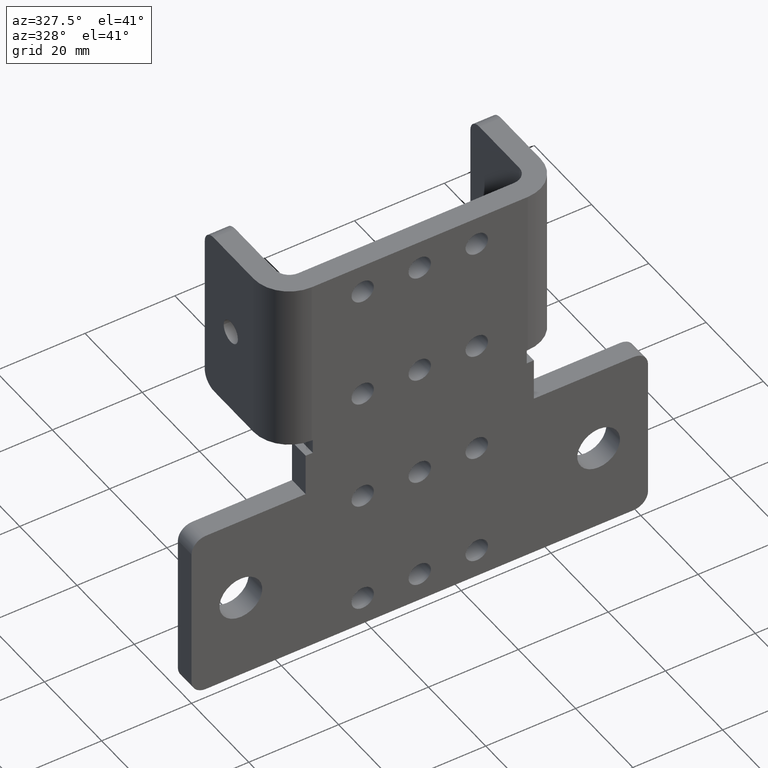
[diagram: clean part render]
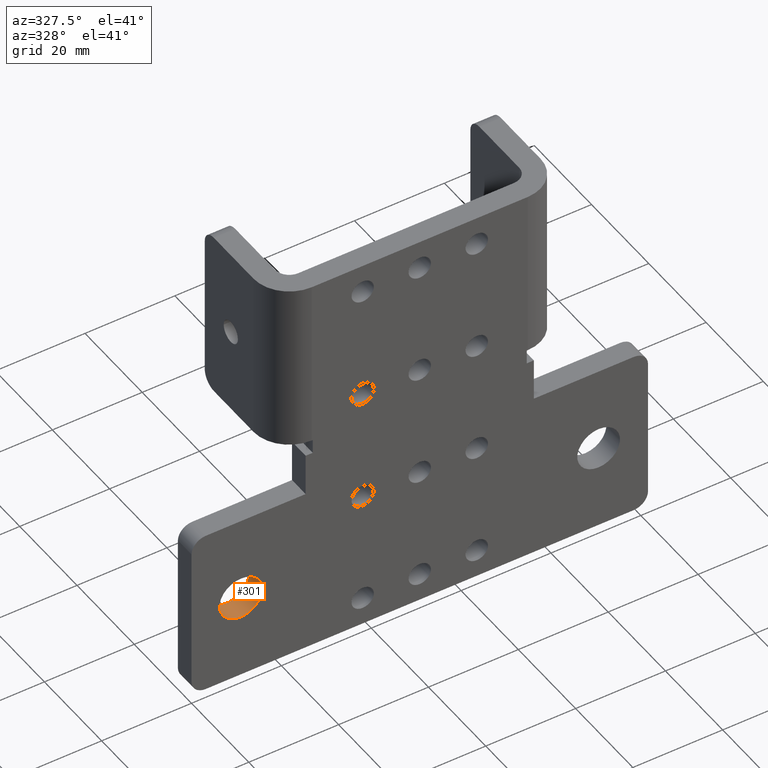
[diagram: same view with one face highlighted and labeled with its STEP entity id]
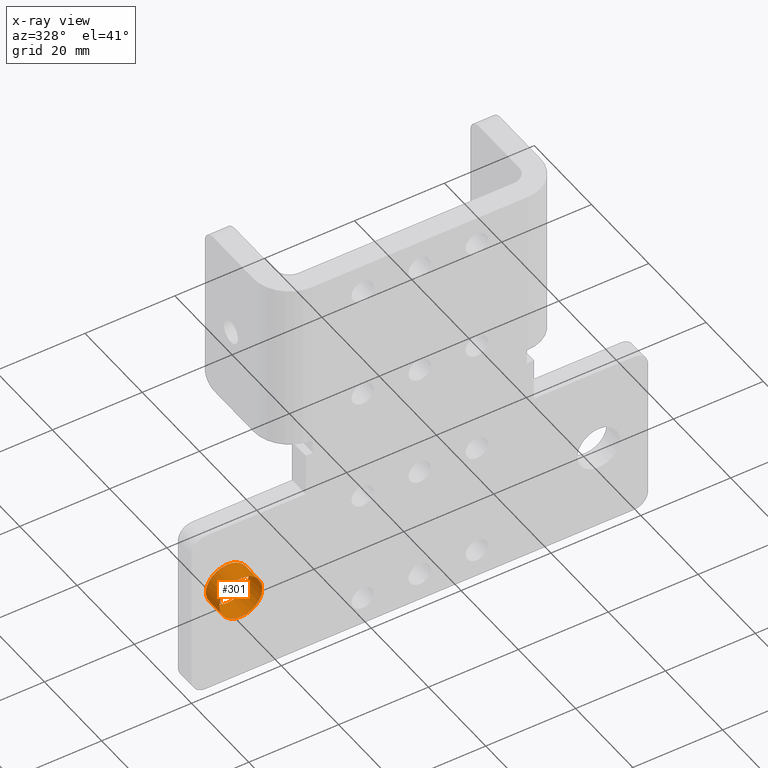
[diagram: x-ray of the same camera — body ghosted, the highlighted face saturated]
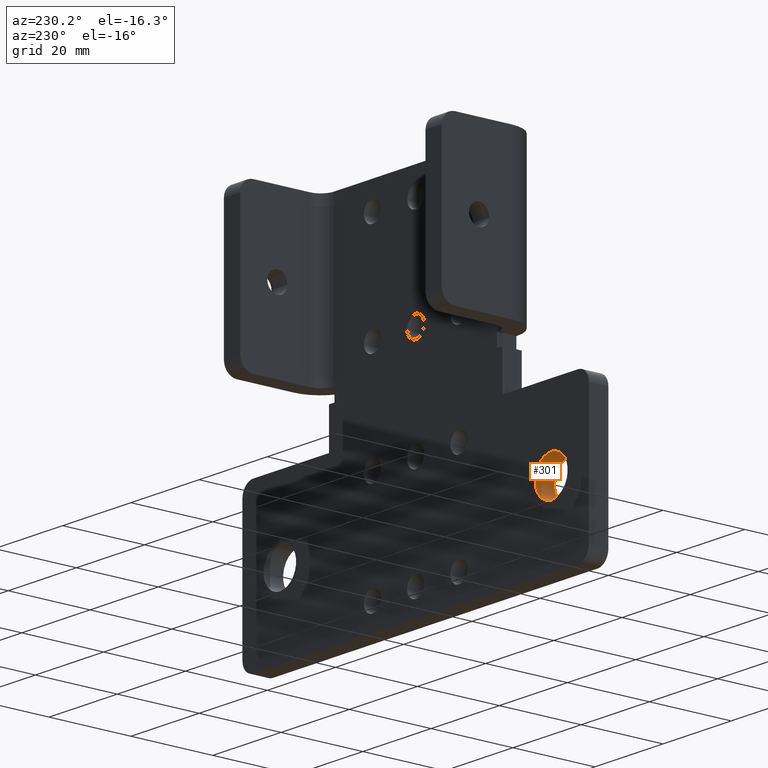
[diagram: same view with one face highlighted and labeled with its STEP entity id]
A machine part, auxiliary view. The second image highlights one B-rep face of the part: STEP entity #301.
The next image is the same camera in x-ray: the body ghosted, the highlighted face saturated — about 0% of this face is hidden behind the body in this view.
A second angle (auxiliary view) of the same face is appended — the face is thin or edge-on in the first view.
In plain terms, the highlighted cylindrical surface (bore or boss wall) has radius 4.7625 mm, axis along (0, 1, -0).
Its self-contained STEP definition (entity closure, byte-faithful):
#57 = CARTESIAN_POINT ( 'NONE',  ( 0.4325000000000001066, 0.0000000000000000000, -0.5625000000000001110 ) ) ;
#203 = DIRECTION ( 'NONE',  ( 0.0000000000000000000, 0.0000000000000000000, 1.000000000000000000 ) ) ;
#211 = ORIENTED_EDGE ( 'NONE', *, *, #579, .T. ) ;
#275 = CIRCLE ( 'NONE', #857, 0.1874999999999999722 ) ;
#276 = AXIS2_PLACEMENT_3D ( 'NONE', #694, #1109, #1371 ) ;
#289 = CARTESIAN_POINT ( 'NONE',  ( 0.4325000000000001066, 0.1875000000000000278, -0.5625000000000001110 ) ) ;
#301 = ADVANCED_FACE ( 'NONE', ( #1807, #1170 ), #508, .F. ) ;
#508 = CYLINDRICAL_SURFACE ( 'NONE', #1262, 0.1874999999999999722 ) ;
#579 = EDGE_CURVE ( 'NONE', #1774, #1774, #623, .T. ) ;
#623 = CIRCLE ( 'NONE', #276, 0.1874999999999999722 ) ;
#629 = DIRECTION ( 'NONE',  ( 0.0000000000000000000, 0.0000000000000000000, 1.000000000000000000 ) ) ;
#694 = CARTESIAN_POINT ( 'NONE',  ( 0.4325000000000001066, 0.1875000000000000278, -0.7500000000000001110 ) ) ;
#857 = AXIS2_PLACEMENT_3D ( 'NONE', #897, #930, #203 ) ;
#877 = ORIENTED_EDGE ( 'NONE', *, *, #1805, .F. ) ;
#897 = CARTESIAN_POINT ( 'NONE',  ( 0.4325000000000001066, 0.0000000000000000000, -0.7500000000000001110 ) ) ;
#930 = DIRECTION ( 'NONE',  ( 0.0000000000000000000, 1.000000000000000000, -0.0000000000000000000 ) ) ;
#951 = DIRECTION ( 'NONE',  ( 0.0000000000000000000, 1.000000000000000000, -0.0000000000000000000 ) ) ;
#1109 = DIRECTION ( 'NONE',  ( 0.0000000000000000000, 1.000000000000000000, -0.0000000000000000000 ) ) ;
#1164 = CARTESIAN_POINT ( 'NONE',  ( 0.4325000000000001066, 0.0000000000000000000, -0.7500000000000001110 ) ) ;
#1167 = EDGE_LOOP ( 'NONE', ( #877 ) ) ;
#1170 = FACE_OUTER_BOUND ( 'NONE', #1648, .T. ) ;
#1262 = AXIS2_PLACEMENT_3D ( 'NONE', #1164, #951, #629 ) ;
#1371 = DIRECTION ( 'NONE',  ( 0.0000000000000000000, 0.0000000000000000000, 1.000000000000000000 ) ) ;
#1648 = EDGE_LOOP ( 'NONE', ( #211 ) ) ;
#1754 = VERTEX_POINT ( 'NONE', #57 ) ;
#1774 = VERTEX_POINT ( 'NONE', #289 ) ;
#1805 = EDGE_CURVE ( 'NONE', #1754, #1754, #275, .T. ) ;
#1807 = FACE_OUTER_BOUND ( 'NONE', #1167, .T. ) ;